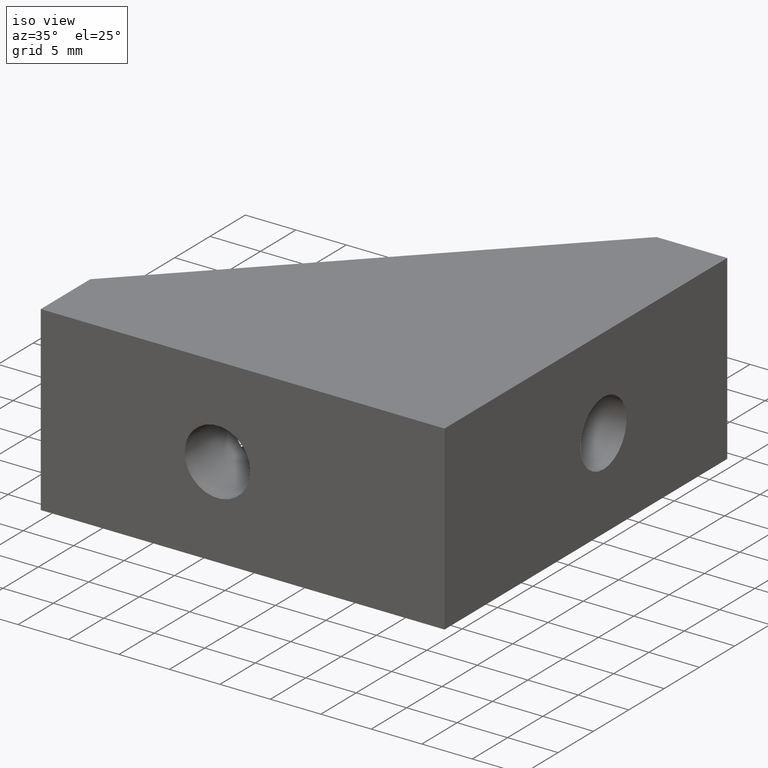
[diagram: clean part render]
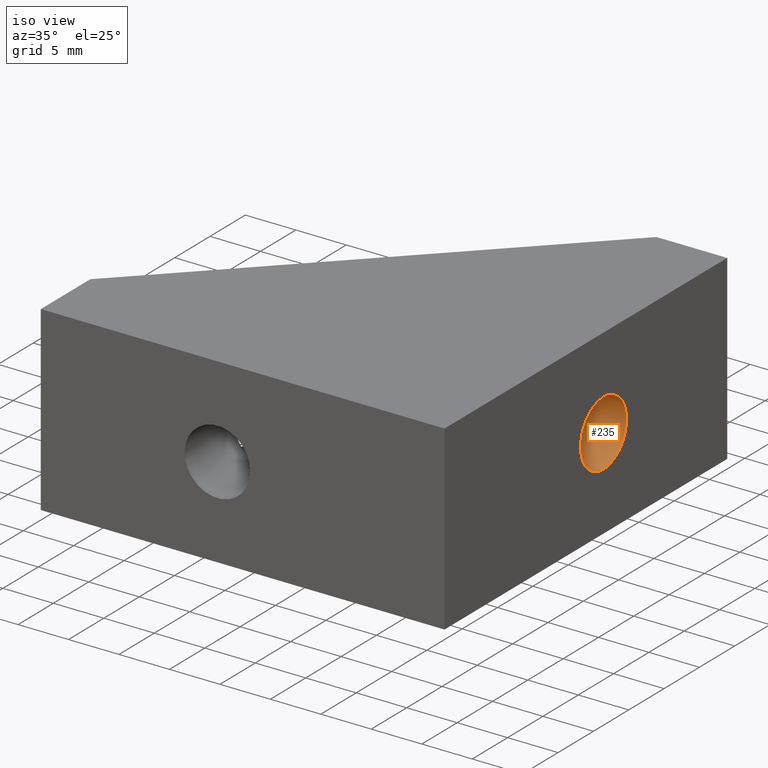
[diagram: same view with one face highlighted and labeled with its STEP entity id]
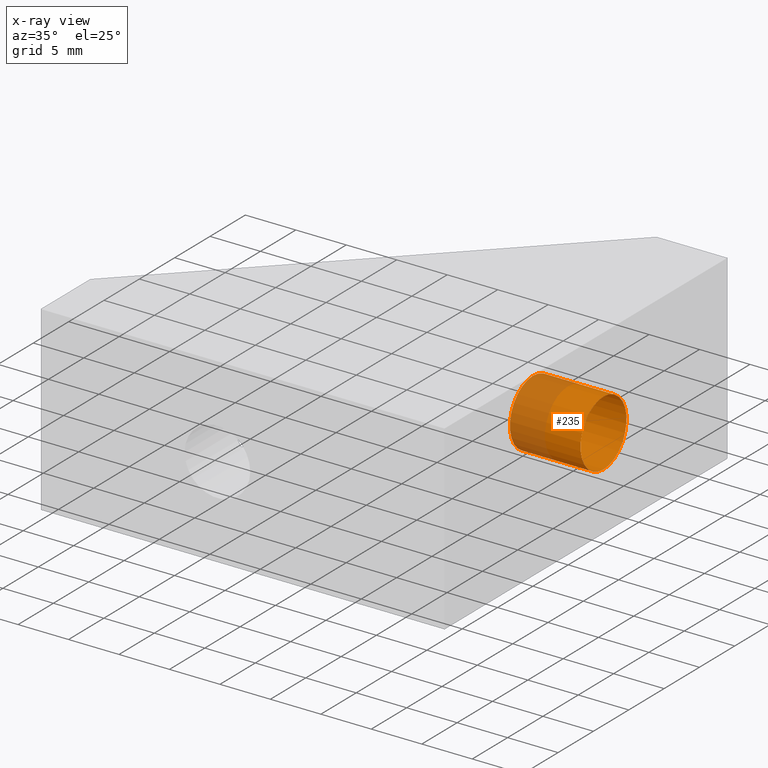
[diagram: x-ray of the same camera — body ghosted, the highlighted face saturated]
A machine part, iso view. The second image highlights one B-rep face of the part: STEP entity #235.
The next image is the same camera in x-ray: the body ghosted, the highlighted face saturated — about 34% of this face is hidden behind the body in this view.
In plain terms, the highlighted cylindrical surface (bore or boss wall) has radius 3.25 mm, axis along (-1, 0, 0).
Its self-contained STEP definition (entity closure, byte-faithful):
#79=FACE_BOUND('',#100,.T.);
#85=FACE_OUTER_BOUND('',#99,.T.);
#99=EDGE_LOOP('',(#173));
#100=EDGE_LOOP('',(#174));
#119=CIRCLE('',#252,3.25);
#120=CIRCLE('',#253,3.25);
#123=VERTEX_POINT('',#335);
#124=VERTEX_POINT('',#337);
#143=EDGE_CURVE('',#123,#123,#119,.T.);
#144=EDGE_CURVE('',#124,#124,#120,.T.);
#173=ORIENTED_EDGE('',*,*,#143,.F.);
#174=ORIENTED_EDGE('',*,*,#144,.F.);
#233=CYLINDRICAL_SURFACE('',#251,3.25);
#235=ADVANCED_FACE('',(#85,#79),#233,.F.);
#251=AXIS2_PLACEMENT_3D('',#334,#271,#272);
#252=AXIS2_PLACEMENT_3D('',#336,#273,#274);
#253=AXIS2_PLACEMENT_3D('',#338,#275,#276);
#271=DIRECTION('center_axis',(-1.,0.,0.));
#272=DIRECTION('ref_axis',(0.,0.,1.));
#273=DIRECTION('center_axis',(1.,0.,0.));
#274=DIRECTION('ref_axis',(0.,0.,1.));
#275=DIRECTION('center_axis',(-1.,0.,0.));
#276=DIRECTION('ref_axis',(0.,0.,1.));
#334=CARTESIAN_POINT('Origin',(0.,0.,0.));
#335=CARTESIAN_POINT('',(-7.,3.9801020972289E-16,-3.25));
#336=CARTESIAN_POINT('Origin',(-7.,0.,0.));
#337=CARTESIAN_POINT('',(0.,3.9801020972289E-16,-3.25));
#338=CARTESIAN_POINT('Origin',(0.,0.,0.));